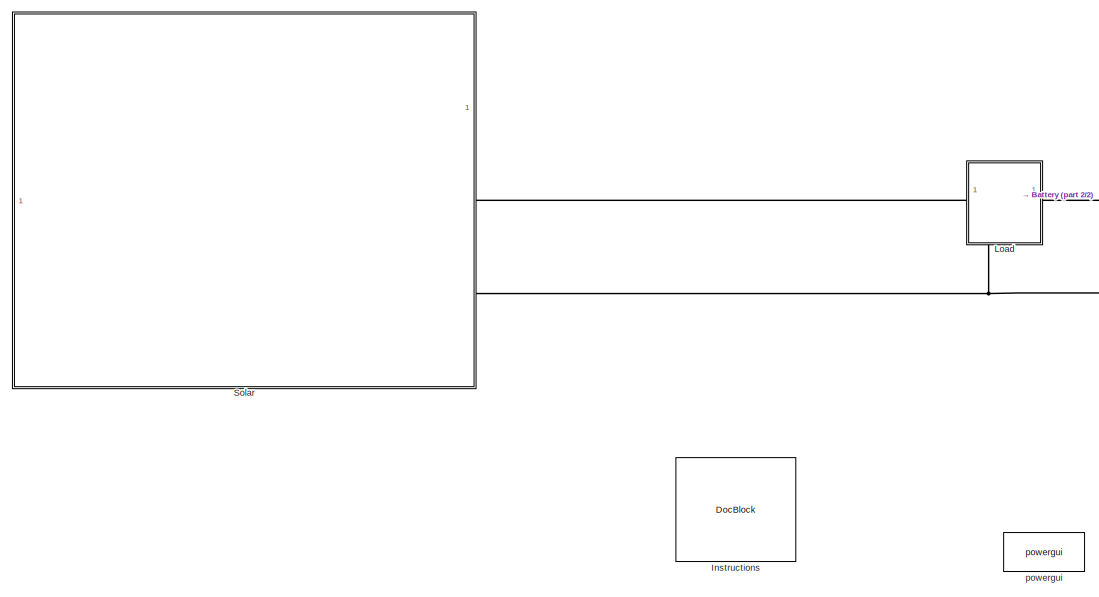
[diagram: root canvas - part 1/2, left side, full height]
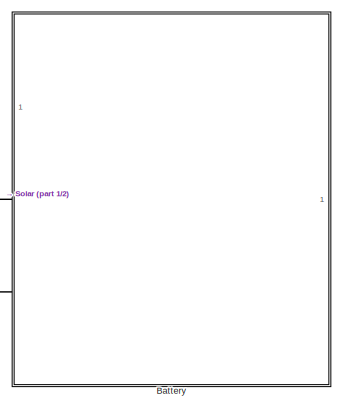
[diagram: root canvas - part 2/2, middle right region]
MODEL slx_b17dfb8899ff
KIND model
CONFIG AbsTol = auto
CONFIG EnableMultiTasking = off
CONFIG FixedStep = auto
CONFIG MaxStep = auto
CONFIG MinStep = auto
CONFIG RelTol = 1e-3
CONFIG SampleTimeConstraint = Unconstrained
CONFIG SolverName = VariableStepAuto
CONFIG StartTime = 120
CONFIG StopTime = 123
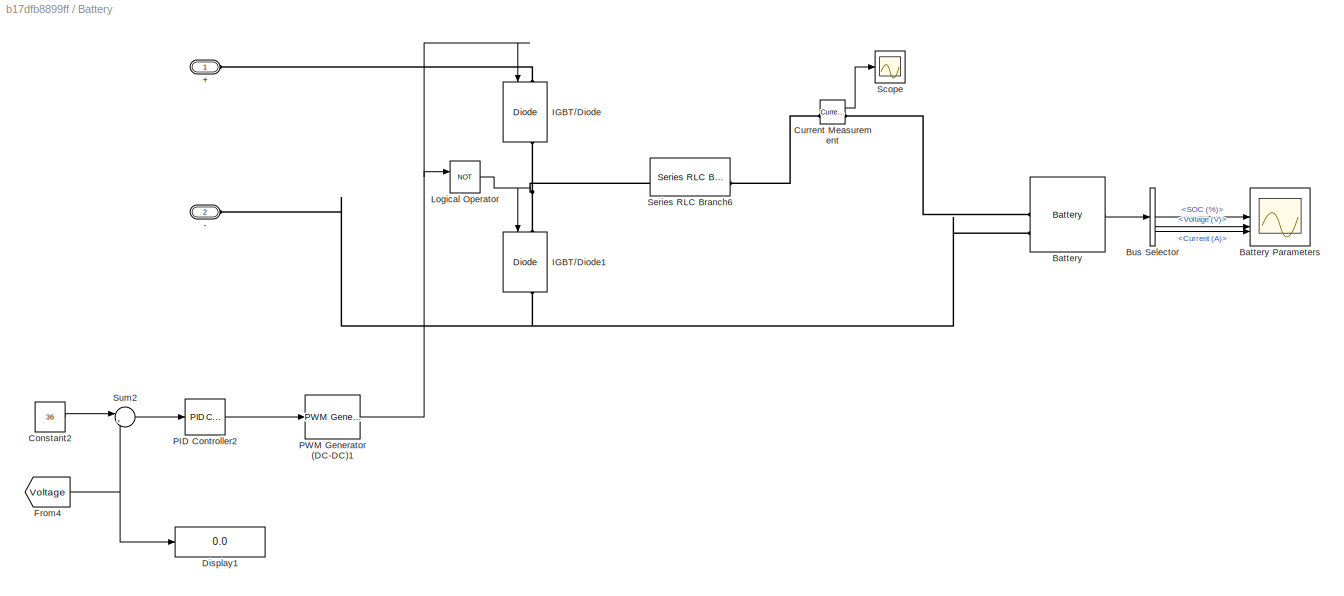
BLOCK [SubSystem] Battery
BLOCK [PMIOPort] Battery/+
  Side = Left
BLOCK [PMIOPort] Battery/-
  Port = 2
  Side = Left
BLOCK [Reference] Battery/Battery  REF=spsBatteryLib/Battery
  LibrarySourceBlock = sps_lib/Sources/Battery
  SourceBlock = spsBatteryLib/Battery
  SourceType = Battery
BLOCK [Scope] Battery/Battery Parameters
  Floating = off
  NumInputPorts = 3
  ScopeSpecificationString = Simulink.scopes.TimeScopeBlockCfg('CurrentConfiguration', extmgr.ConfigurationSet(extmgr.Configuration('Core','General UI',true),extmgr.Configuration('Core','Source UI',true),extmgr.Configuration('Sources','WiredSimulink',true,'DataLoggingVariableName','ScopeData1'),extmgr.Configuration('Visuals','Time Domain',true,'SerializedDisplays',{struct('MinYLimReal','51.6441004','MaxYLimReal','51.6441022',...<+3016ch>
BLOCK [BusSelector] Battery/Bus Selector
  OutputSignals = SOC (%),Voltage (V),Current (A)
BLOCK [Constant] Battery/Constant2
  Value = 36
BLOCK [Reference] Battery/Current Measurement  REF=spsCurrentMeasurementLib/Current Measurement
  LibrarySourceBlock = sps_lib/Sensors and Measurements/Current Measurement
  SourceBlock = spsCurrentMeasurementLib/Current Measurement
  SourceType = Current Measurement
  UserDataPersistent = on
BLOCK [Display] Battery/Display1
  Decimation = 1
BLOCK [From] Battery/From4
  GotoTag = Voltage
BLOCK [Reference] Battery/IGBT//Diode  REF=spsIGBTDiodeLib/IGBT//Diode
  NameLocation = left
  SourceBlock = spsIGBTDiodeLib/IGBT//Diode
  SourceType = IGBT/Diode
BLOCK [Reference] Battery/IGBT//Diode1  REF=spsIGBTDiodeLib/IGBT//Diode
  NameLocation = right
  SourceBlock = spsIGBTDiodeLib/IGBT//Diode
  SourceType = IGBT/Diode
BLOCK [Logic] Battery/Logical Operator
  AllPortsSameDT = off
  Operator = NOT
  OutDataTypeStr = boolean
BLOCK [Reference] Battery/PID Controller2  REF=slpidlib/PID Controller
  LibrarySourceBlock = simulink/Continuous/PID Controller
  SourceBlock = slpidlib/PID Controller
  SourceType = PID 1dof
BLOCK [Reference] Battery/PWM Generator (DC-DC)1  REF=spsPWMGeneratorDCDCLib/PWM Generator
(DC-DC)
  LibrarySourceBlock = sps_lib/Power Electronics/Power Electronics Control/PWM Generator\n(DC-DC)
  SourceBlock = spsPWMGeneratorDCDCLib/PWM Generator\n(DC-DC)
  SourceType = PWM Generator (DC-DC)
BLOCK [Scope] Battery/Scope
  Floating = off
  NumInputPorts = 1
  ScopeSpecificationString = Simulink.scopes.TimeScopeBlockCfg('CurrentConfiguration', extmgr.ConfigurationSet(extmgr.Configuration('Core','General UI',true),extmgr.Configuration('Core','Source UI',true),extmgr.Configuration('Sources','WiredSimulink',true,'DataLoggingVariableName','ScopeData2'),extmgr.Configuration('Visuals','Time Domain',true,'SerializedDisplays',{struct('MinYLimReal','-9.91019','MaxYLimReal','89.19835','YLa...<+1523ch>
BLOCK [Reference] Battery/Series RLC Branch6  REF=spsSeriesRLCBranchLib/Series RLC Branch
  LibrarySourceBlock = sps_lib/Passives/Series RLC Branch
  SourceBlock = spsSeriesRLCBranchLib/Series RLC Branch
  SourceType = Series RLC Branch
BLOCK [Sum] Battery/Sum2
  Inputs = |+-
BLOCK [Reference] Instructions  REF=simulink/Model-Wide
Utilities/DocBlock
  SourceBlock = simulink/Model-Wide\nUtilities/DocBlock
  SourceType = DocBlock
  UserDataPersistent = on
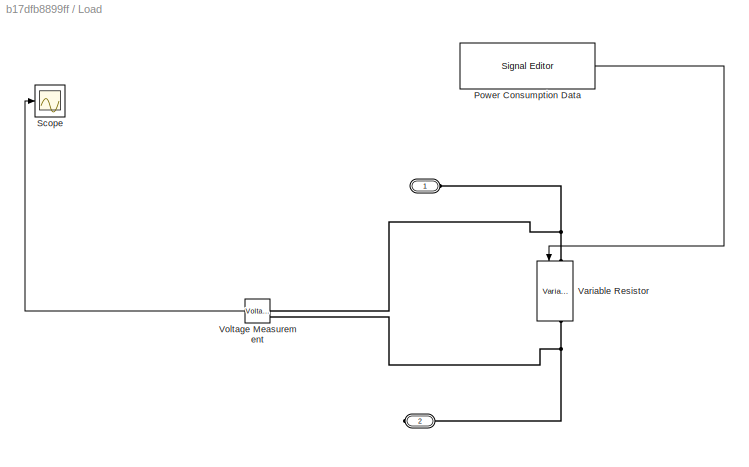
BLOCK [SubSystem] Load
  PortSchema = {"entries":[{"content":{"sides":[{"content":{},"type":"ConnectorPlacement.EquallySpacedRectSide","uuid":"223a8ec7-d9ac-4869-be30-0e3f111284b6"},{"content":{"side":"RIGHT"},"type":"ConnectorPlacement.EquallySpacedRectSide","uuid":"4171ceb5-df16-4550-9af5-4849cdd8fb69"},{"content":{"connectorIds":["LConn1"],"side":"TOP"},"type":"ConnectorPlacement.EquallySpacedRectSide","uuid":"6a035cfa-8de8-4480-86...<+354ch>
BLOCK [PMIOPort] Load/ 
  Side = Left
BLOCK [PMIOPort] Load/  
  Port = 2
  Side = Right
BLOCK [Reference] Load/Power Consumption Data  REF=SignalEditorBlockLib/Signal Editor
  SourceBlock = SignalEditorBlockLib/Signal Editor
  SourceType = SignalEditor
  UserDataPersistent = on
BLOCK [Scope] Load/Scope
  Floating = off
  NumInputPorts = 1
  ScopeSpecificationString = Simulink.scopes.TimeScopeBlockCfg('CurrentConfiguration', extmgr.ConfigurationSet(extmgr.Configuration('Core','General UI',true),extmgr.Configuration('Core','Source UI',true),extmgr.Configuration('Sources','WiredSimulink',true,'DataLoggingVariableName','ScopeData1'),extmgr.Configuration('Visuals','Time Domain',true,'SerializedDisplays',{struct('MinYLimReal','-105.01677','MaxYLimReal','945.15092','...<+1481ch>
BLOCK [Reference] Load/Variable Resistor  REF=spsVariableResistorLib/Variable Resistor
  NameLocation = left
  SourceBlock = spsVariableResistorLib/Variable Resistor
  SourceType = Variable Resistor
BLOCK [Reference] Load/Voltage Measurement  REF=spsVoltageMeasurementLib/Voltage Measurement
  LibrarySourceBlock = sps_lib/Sensors and Measurements/Voltage Measurement
  SourceBlock = spsVoltageMeasurementLib/Voltage Measurement
  SourceType = Voltage Measurement
  UserDataPersistent = on
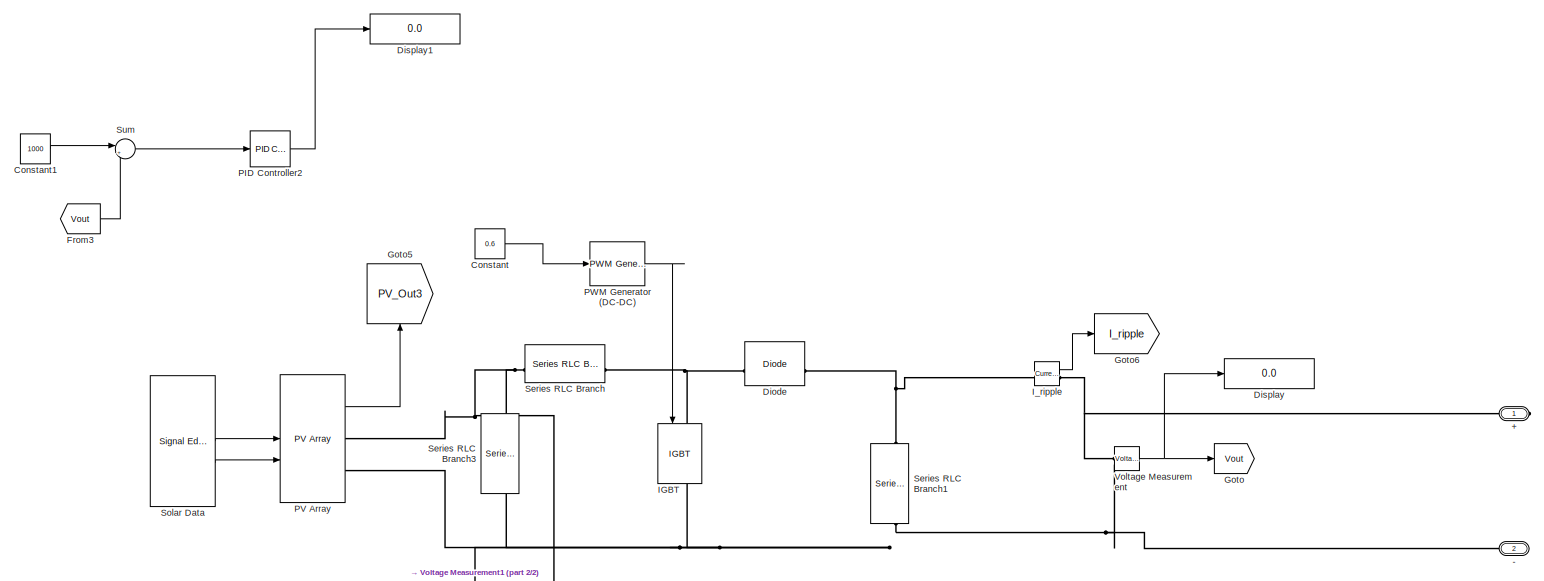
[diagram: Solar - part 1/2, full width, top band]
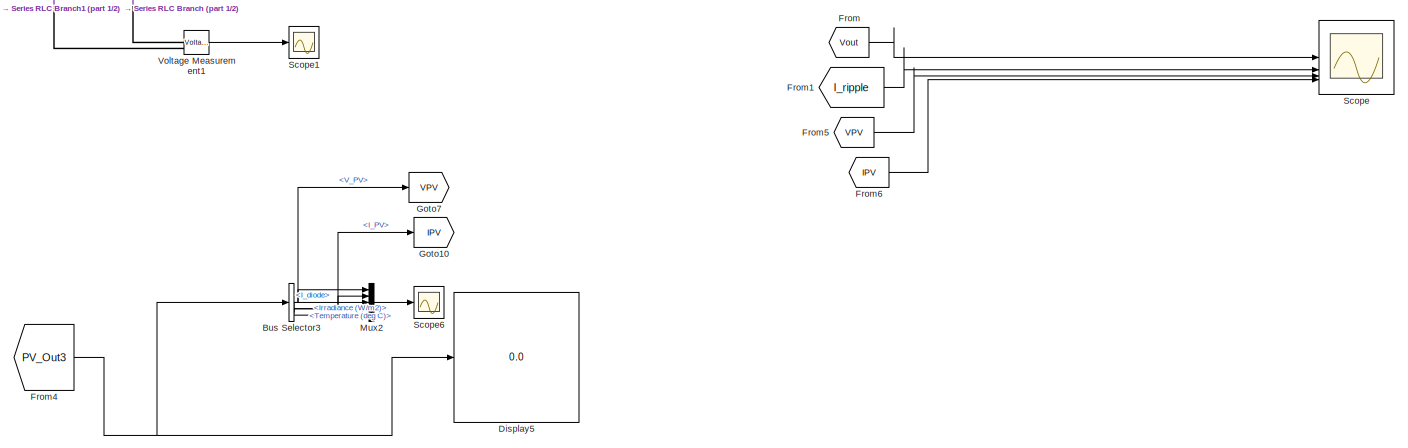
[diagram: Solar - part 2/2, full width, bottom band]
BLOCK [SubSystem] Solar
BLOCK [PMIOPort] Solar/+
  Side = Right
BLOCK [PMIOPort] Solar/-
  NameLocation = top
  Port = 2
  Side = Right
BLOCK [BusSelector] Solar/Bus Selector3
  OutputSignals = V_PV,I_PV,I_diode,Temperature (deg C),Irradiance (W/m2)
BLOCK [Constant] Solar/Constant
  Value = 0.6
BLOCK [Constant] Solar/Constant1
  Value = 1000
BLOCK [Reference] Solar/Diode  REF=spsDiodeLib/Diode
  LibrarySourceBlock = sps_lib/Power Electronics/Diode
  SourceBlock = spsDiodeLib/Diode
  SourceType = Diode
BLOCK [Display] Solar/Display
  Decimation = 1
BLOCK [Display] Solar/Display1
  Decimation = 1
BLOCK [Display] Solar/Display5
  Decimation = 1
BLOCK [From] Solar/From
  GotoTag = Vout
BLOCK [From] Solar/From1
  GotoTag = I_ripple
BLOCK [From] Solar/From3
  GotoTag = Vout
BLOCK [From] Solar/From4
  GotoTag = PV_Out3
  TagVisibility = global
BLOCK [From] Solar/From5
  GotoTag = VPV
BLOCK [From] Solar/From6
  GotoTag = IPV
BLOCK [Goto] Solar/Goto
  GotoTag = Vout
BLOCK [Goto] Solar/Goto10
  GotoTag = IPV
BLOCK [Goto] Solar/Goto5
  GotoTag = PV_Out3
  NameLocation = right
  TagVisibility = global
BLOCK [Goto] Solar/Goto6
  GotoTag = I_ripple
  IconDisplay = Tag and signal name
BLOCK [Goto] Solar/Goto7
  GotoTag = VPV
BLOCK [Reference] Solar/IGBT  REF=spsIGBTLib/IGBT
  LibrarySourceBlock = sps_lib/Power Electronics/IGBT
  NameLocation = left
  SourceBlock = spsIGBTLib/IGBT
  SourceType = IGBT
BLOCK [Reference] Solar/I_ripple  REF=spsCurrentMeasurementLib/Current Measurement
  LibrarySourceBlock = sps_lib/Sensors and Measurements/Current Measurement
  SourceBlock = spsCurrentMeasurementLib/Current Measurement
  SourceType = Current Measurement
  UserDataPersistent = on
BLOCK [Mux] Solar/Mux2
  DisplayOption = bar
  Inputs = 5
BLOCK [Reference] Solar/PID Controller2  REF=slpidlib/PID Controller
  LibrarySourceBlock = simulink/Continuous/PID Controller
  SourceBlock = slpidlib/PID Controller
  SourceType = PID 1dof
BLOCK [Reference] Solar/PV Array  REF=spsPVArrayLib/PV Array
  SourceBlock = spsPVArrayLib/PV Array
  SourceType = PV array
BLOCK [Reference] Solar/PWM Generator (DC-DC)  REF=spsPWMGeneratorDCDCLib/PWM Generator
(DC-DC)
  LibrarySourceBlock = sps_lib/Power Electronics/Power Electronics Control/PWM Generator\n(DC-DC)
  SourceBlock = spsPWMGeneratorDCDCLib/PWM Generator\n(DC-DC)
  SourceType = PWM Generator (DC-DC)
BLOCK [Scope] Solar/Scope
  Floating = off
  NumInputPorts = 4
  ScopeSpecificationString = Simulink.scopes.TimeScopeBlockCfg('CurrentConfiguration', extmgr.ConfigurationSet(extmgr.Configuration('Core','General UI',true),extmgr.Configuration('Core','Source UI',true),extmgr.Configuration('Sources','WiredSimulink',true),extmgr.Configuration('Visuals','Time Domain',true,'SerializedDisplays',{struct('MinYLimReal','-547.22333','MaxYLimReal','4925.00997','YLabelReal','','MinYLimMag',' 0.00000'...<+3712ch>
BLOCK [Scope] Solar/Scope1
  Floating = off
  NumInputPorts = 1
  ScopeSpecificationString = Simulink.scopes.TimeScopeBlockCfg('CurrentConfiguration', extmgr.ConfigurationSet(extmgr.Configuration('Core','General UI',true),extmgr.Configuration('Core','Source UI',true),extmgr.Configuration('Sources','WiredSimulink',true,'DataLoggingVariableName','ScopeData1'),extmgr.Configuration('Visuals','Time Domain',true,'SerializedDisplays',{struct('MinYLimReal','-91.98819','MaxYLimReal','221.46012','Y...<+1534ch>
BLOCK [Scope] Solar/Scope6
  Floating = off
  NumInputPorts = 1
  ScopeSpecificationString = Simulink.scopes.TimeScopeBlockCfg('CurrentConfiguration', extmgr.ConfigurationSet(extmgr.Configuration('Core','General UI',true),extmgr.Configuration('Core','Source UI',true),extmgr.Configuration('Sources','WiredSimulink',true,'DataLoggingVariableName','ScopeData2'),extmgr.Configuration('Visuals','Time Domain',true,'SerializedDisplays',{struct('MinYLimReal','-165.78919','MaxYLimReal','1128.77076',...<+2036ch>
BLOCK [Reference] Solar/Series RLC Branch  REF=spsSeriesRLCBranchLib/Series RLC Branch
  LibrarySourceBlock = sps_lib/Passives/Series RLC Branch
  SourceBlock = spsSeriesRLCBranchLib/Series RLC Branch
  SourceType = Series RLC Branch
BLOCK [Reference] Solar/Series RLC Branch1  REF=spsSeriesRLCBranchLib/Series RLC Branch
  LibrarySourceBlock = sps_lib/Passives/Series RLC Branch
  NameLocation = left
  SourceBlock = spsSeriesRLCBranchLib/Series RLC Branch
  SourceType = Series RLC Branch
BLOCK [Reference] Solar/Series RLC Branch3  REF=spsSeriesRLCBranchLib/Series RLC Branch
  LibrarySourceBlock = sps_lib/Passives/Series RLC Branch
  NameLocation = left
  SourceBlock = spsSeriesRLCBranchLib/Series RLC Branch
  SourceType = Series RLC Branch
BLOCK [Reference] Solar/Solar Data  REF=SignalEditorBlockLib/Signal Editor
  LibrarySourceBlock = simulink/Sources/Signal Editor
  SourceBlock = SignalEditorBlockLib/Signal Editor
  SourceType = SignalEditor
  UserDataPersistent = on
BLOCK [Sum] Solar/Sum
  Inputs = |+-
BLOCK [Reference] Solar/Voltage Measurement  REF=spsVoltageMeasurementLib/Voltage Measurement
  LibrarySourceBlock = sps_lib/Sensors and Measurements/Voltage Measurement
  SourceBlock = spsVoltageMeasurementLib/Voltage Measurement
  SourceType = Voltage Measurement
  UserDataPersistent = on
BLOCK [Reference] Solar/Voltage Measurement1  REF=spsVoltageMeasurementLib/Voltage Measurement
  LibrarySourceBlock = sps_lib/Sensors and Measurements/Voltage Measurement
  SourceBlock = spsVoltageMeasurementLib/Voltage Measurement
  SourceType = Voltage Measurement
  UserDataPersistent = on
BLOCK [Reference] powergui  REF=sps_lib/powergui
  LibrarySourceBlock = sps_lib/powergui
  Priority = 1
  SourceBlock = sps_lib/powergui
  SourceType = PSB option menu block
LINE Battery/Battery:1 -> Battery/Bus Selector:1
LINE Battery/Bus Selector:1 -> Battery/Battery Parameters:1
LINE Battery/Bus Selector:2 -> Battery/Battery Parameters:2
LINE Battery/Bus Selector:3 -> Battery/Battery Parameters:3
LINE Battery/Constant2:1 -> Battery/Sum2:1
LINE Battery/Current Measurement:1 -> Battery/Scope:1
NET Battery/From4:1 -> Battery/Display1:1, Battery/Sum2:2
LINE Battery/Logical Operator:1 -> Battery/IGBT//Diode1:1
LINE Battery/PID Controller2:1 -> Battery/PWM Generator (DC-DC)1:1
NET Battery/PWM Generator (DC-DC)1:1 -> Battery/IGBT//Diode:1, Battery/Logical Operator:1
LINE Battery/Sum2:1 -> Battery/PID Controller2:1
LINE Load/Power Consumption Data:1 -> Load/Variable Resistor:1
LINE Load/Voltage Measurement:1 -> Load/Scope:1
NET Solar/Bus Selector3:1 -> Solar/Goto7:1, Solar/Mux2:1
NET Solar/Bus Selector3:2 -> Solar/Goto10:1, Solar/Mux2:2
LINE Solar/Bus Selector3:3 -> Solar/Mux2:3
LINE Solar/Bus Selector3:4 -> Solar/Mux2:4
LINE Solar/Bus Selector3:5 -> Solar/Mux2:5
LINE Solar/Constant1:1 -> Solar/Sum:1
LINE Solar/Constant:1 -> Solar/PWM Generator (DC-DC):1
LINE Solar/From1:1 -> Solar/Scope:2
LINE Solar/From3:1 -> Solar/Sum:2
NET Solar/From4:1 -> Solar/Bus Selector3:1, Solar/Display5:1
LINE Solar/From5:1 -> Solar/Scope:3
LINE Solar/From6:1 -> Solar/Scope:4
LINE Solar/From:1 -> Solar/Scope:1
LINE Solar/I_ripple:1 -> Solar/Goto6:1
LINE Solar/Mux2:1 -> Solar/Scope6:1
LINE Solar/PID Controller2:1 -> Solar/Display1:1
LINE Solar/PV Array:1 -> Solar/Goto5:1
LINE Solar/PWM Generator (DC-DC):1 -> Solar/IGBT:1
LINE Solar/Solar Data:1 -> Solar/PV Array:1
LINE Solar/Solar Data:2 -> Solar/PV Array:2
LINE Solar/Sum:1 -> Solar/PID Controller2:1
LINE Solar/Voltage Measurement1:1 -> Solar/Scope1:1
NET Solar/Voltage Measurement:1 -> Solar/Display:1, Solar/Goto:1
PLINE Battery/+:RConn1 -- Battery/IGBT//Diode:LConn1
PNET net1: Battery/-:RConn1 -- Battery/Battery:LConn2 -- Battery/IGBT//Diode1:RConn1
PLINE Battery/Battery:LConn1 -- Battery/Current Measurement:RConn1
PLINE Battery/Current Measurement:LConn1 -- Battery/Series RLC Branch6:RConn1
PNET net2: Battery/IGBT//Diode1:LConn1 -- Battery/IGBT//Diode:RConn1 -- Battery/Series RLC Branch6:LConn1
PNET net3: Battery:LConn1 -- Load:LConn1 -- Solar:RConn1
PNET net4: Battery:LConn2 -- Load:RConn1 -- Solar:RConn2
PNET net5: Load/  :RConn1 -- Load/Variable Resistor:RConn1 -- Load/Voltage Measurement:LConn2
PNET net6: Load/ :RConn1 -- Load/Variable Resistor:LConn1 -- Load/Voltage Measurement:LConn1
PNET net7: Solar/+:RConn1 -- Solar/I_ripple:RConn1 -- Solar/Voltage Measurement:LConn1
PNET net8: Solar/-:RConn1 -- Solar/IGBT:RConn1 -- Solar/PV Array:RConn2 -- Solar/Series RLC Branch1:RConn1 -- Solar/Series RLC Branch3:RConn1 -- Solar/Voltage Measurement1:LConn2 -- Solar/Voltage Measurement:LConn2
PNET net9: Solar/Diode:LConn1 -- Solar/IGBT:LConn1 -- Solar/Series RLC Branch:RConn1
PNET net10: Solar/Diode:RConn1 -- Solar/I_ripple:LConn1 -- Solar/Series RLC Branch1:LConn1
PNET net11: Solar/PV Array:RConn1 -- Solar/Series RLC Branch3:LConn1 -- Solar/Series RLC Branch:LConn1 -- Solar/Voltage Measurement1:LConn1
note: NET lines group one-source signal fan-out (src -> all destinations, sorted); 1:1 wires keep LINE; PNET lines group multi-terminal physical nets as a canonical sorted terminal list (undirected conserving connections); 2-terminal nets keep the pairwise PLINE form
